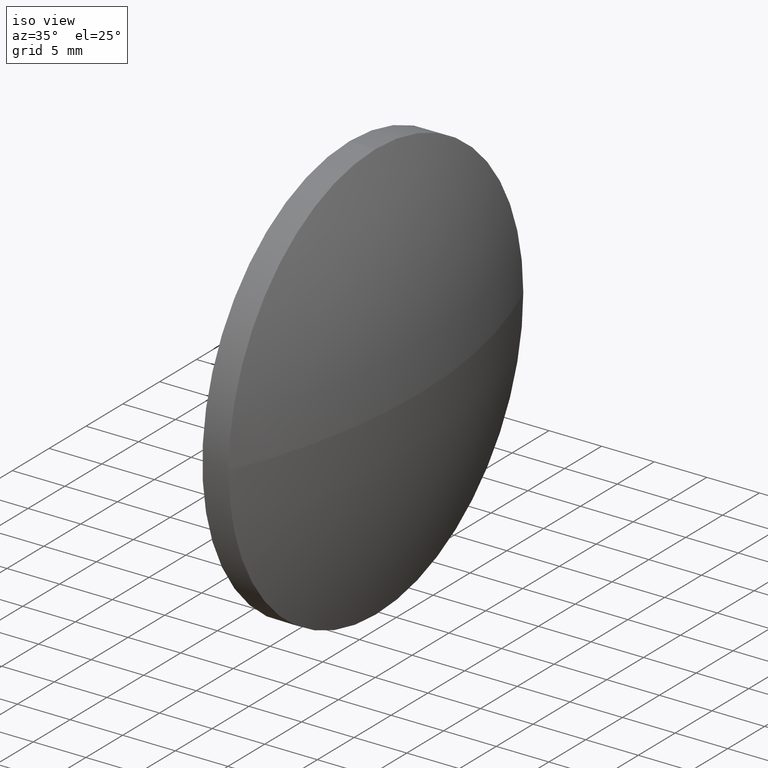
[diagram: clean part render]
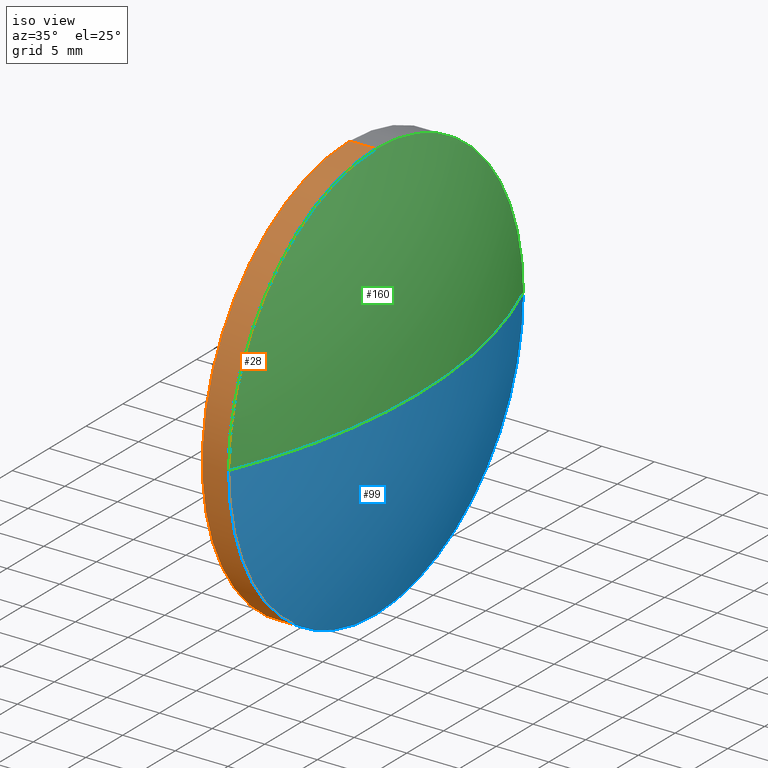
[diagram: same view with three faces highlighted in distinct colors, each labeled with its STEP entity id]
A machine part, iso view with three faces highlighted in distinct colors.
Their STEP definitions:

[orange] entity #28 — the highlighted cylindrical surface (partial cylindrical patch) has radius 20 mm, axis along (-1, -0, -0).
#1 = EDGE_CURVE ( 'NONE', #98, #41, #87, .T. ) ;
#3 = CARTESIAN_POINT ( 'NONE',  ( 492.9783732826454100, 28.03450689245858000, 0.0000000000000000000 ) ) ;
#4 = DIRECTION ( 'NONE',  ( -1.000000000000000000, -0.0000000000000000000, -0.0000000000000000000 ) ) ;
#18 = DIRECTION ( 'NONE',  ( -1.000000000000000000, -0.0000000000000000000, -0.0000000000000000000 ) ) ;
#20 = CARTESIAN_POINT ( 'NONE',  ( 499.4433268936313700, 28.03450689245858400, -20.00000000000000400 ) ) ;
#21 = VERTEX_POINT ( 'NONE', #152 ) ;
#27 = EDGE_LOOP ( 'NONE', ( #186, #71, #62, #159, #184 ) ) ;
#28 = ADVANCED_FACE ( 'NONE', ( #185 ), #58, .T. ) ;
#33 = DIRECTION ( 'NONE',  ( -1.000000000000000000, -0.0000000000000000000, -0.0000000000000000000 ) ) ;
#35 = AXIS2_PLACEMENT_3D ( 'NONE', #78, #153, #106 ) ;
#36 = DIRECTION ( 'NONE',  ( -1.000000000000000000, -0.0000000000000000000, -0.0000000000000000000 ) ) ;
#41 = VERTEX_POINT ( 'NONE', #74 ) ;
#50 = CARTESIAN_POINT ( 'NONE',  ( 499.4433268936313700, 8.034506892458615800, 0.0000000000000000000 ) ) ;
#52 = VECTOR ( 'NONE', #77, 1000.000000000000000 ) ;
#58 = CYLINDRICAL_SURFACE ( 'NONE', #100, 20.00000000000000400 ) ;
#60 = CARTESIAN_POINT ( 'NONE',  ( 496.9433268936313700, 28.03450689245858400, -20.00000000000000400 ) ) ;
#62 = ORIENTED_EDGE ( 'NONE', *, *, #175, .T. ) ;
#69 = EDGE_CURVE ( 'NONE', #135, #98, #112, .T. ) ;
#71 = ORIENTED_EDGE ( 'NONE', *, *, #103, .T. ) ;
#72 = CARTESIAN_POINT ( 'NONE',  ( 496.9433268936313700, 28.03450689245858000, 0.0000000000000000000 ) ) ;
#74 = CARTESIAN_POINT ( 'NONE',  ( 496.9433268936313700, 28.03450689245858000, 20.00000000000000400 ) ) ;
#77 = DIRECTION ( 'NONE',  ( -1.000000000000000000, -0.0000000000000000000, -0.0000000000000000000 ) ) ;
#78 = CARTESIAN_POINT ( 'NONE',  ( 499.4433268936313700, 28.03450689245858000, 0.0000000000000000000 ) ) ;
#87 = CIRCLE ( 'NONE', #162, 20.00000000000000400 ) ;
#88 = CARTESIAN_POINT ( 'NONE',  ( 492.9783732826454100, 28.03450689245858000, 20.00000000000000400 ) ) ;
#90 = CARTESIAN_POINT ( 'NONE',  ( 499.4433268936313700, 28.03450689245858000, 0.0000000000000000000 ) ) ;
#93 = CIRCLE ( 'NONE', #169, 20.00000000000000400 ) ;
#98 = VERTEX_POINT ( 'NONE', #60 ) ;
#100 = AXIS2_PLACEMENT_3D ( 'NONE', #3, #18, #102 ) ;
#102 = DIRECTION ( 'NONE',  ( 0.0000000000000000000, 0.0000000000000000000, 1.000000000000000000 ) ) ;
#103 = EDGE_CURVE ( 'NONE', #135, #150, #115, .T. ) ;
#106 = DIRECTION ( 'NONE',  ( 0.0000000000000000000, 0.0000000000000000000, 1.000000000000000000 ) ) ;
#108 = VECTOR ( 'NONE', #33, 1000.000000000000000 ) ;
#112 = LINE ( 'NONE', #122, #52 ) ;
#115 = CIRCLE ( 'NONE', #35, 20.00000000000000400 ) ;
#122 = CARTESIAN_POINT ( 'NONE',  ( 492.9783732826454100, 28.03450689245858400, -20.00000000000000400 ) ) ;
#127 = DIRECTION ( 'NONE',  ( 0.0000000000000000000, 0.0000000000000000000, 1.000000000000000000 ) ) ;
#135 = VERTEX_POINT ( 'NONE', #20 ) ;
#150 = VERTEX_POINT ( 'NONE', #50 ) ;
#151 = EDGE_CURVE ( 'NONE', #21, #41, #170, .T. ) ;
#152 = CARTESIAN_POINT ( 'NONE',  ( 499.4433268936313700, 28.03450689245858000, 20.00000000000000400 ) ) ;
#153 = DIRECTION ( 'NONE',  ( -1.000000000000000000, -0.0000000000000000000, -0.0000000000000000000 ) ) ;
#159 = ORIENTED_EDGE ( 'NONE', *, *, #151, .T. ) ;
#162 = AXIS2_PLACEMENT_3D ( 'NONE', #72, #4, #179 ) ;
#169 = AXIS2_PLACEMENT_3D ( 'NONE', #90, #36, #127 ) ;
#170 = LINE ( 'NONE', #88, #108 ) ;
#175 = EDGE_CURVE ( 'NONE', #150, #21, #93, .T. ) ;
#179 = DIRECTION ( 'NONE',  ( 0.0000000000000000000, 0.0000000000000000000, 1.000000000000000000 ) ) ;
#184 = ORIENTED_EDGE ( 'NONE', *, *, #1, .F. ) ;
#185 = FACE_OUTER_BOUND ( 'NONE', #27, .T. ) ;
#186 = ORIENTED_EDGE ( 'NONE', *, *, #69, .F. ) ;

[blue] entity #99 — the highlighted spherical surface has radius 51.6428 mm.
#9 = ORIENTED_EDGE ( 'NONE', *, *, #85, .F. ) ;
#20 = CARTESIAN_POINT ( 'NONE',  ( 499.4433268936313700, 28.03450689245858400, -20.00000000000000400 ) ) ;
#31 = CARTESIAN_POINT ( 'NONE',  ( 499.4433268936313700, 28.03450689245858000, 0.0000000000000000000 ) ) ;
#32 = CARTESIAN_POINT ( 'NONE',  ( 451.8305353303560400, 28.03450689245860500, 0.0000000000000000000 ) ) ;
#35 = AXIS2_PLACEMENT_3D ( 'NONE', #78, #153, #106 ) ;
#38 = ORIENTED_EDGE ( 'NONE', *, *, #103, .F. ) ;
#39 = DIRECTION ( 'NONE',  ( 0.0000000000000000000, -1.000000000000000000, -1.224646799147353200E-016 ) ) ;
#40 = CIRCLE ( 'NONE', #174, 20.00000000000000400 ) ;
#42 = AXIS2_PLACEMENT_3D ( 'NONE', #32, #143, #86 ) ;
#44 = VERTEX_POINT ( 'NONE', #104 ) ;
#45 = DIRECTION ( 'NONE',  ( 0.0000000000000000000, 0.0000000000000000000, -1.000000000000000000 ) ) ;
#47 = VERTEX_POINT ( 'NONE', #124 ) ;
#50 = CARTESIAN_POINT ( 'NONE',  ( 499.4433268936313700, 8.034506892458615800, 0.0000000000000000000 ) ) ;
#57 = AXIS2_PLACEMENT_3D ( 'NONE', #81, #144, #39 ) ;
#75 = SPHERICAL_SURFACE ( 'NONE', #42, 51.64279156327529600 ) ;
#78 = CARTESIAN_POINT ( 'NONE',  ( 499.4433268936313700, 28.03450689245858000, 0.0000000000000000000 ) ) ;
#81 = CARTESIAN_POINT ( 'NONE',  ( 451.8305353303560400, 28.03450689245860500, 0.0000000000000000000 ) ) ;
#85 = EDGE_CURVE ( 'NONE', #47, #135, #40, .T. ) ;
#86 = DIRECTION ( 'NONE',  ( 0.0000000000000000000, -1.000000000000000000, 0.0000000000000000000 ) ) ;
#99 = ADVANCED_FACE ( 'NONE', ( #131 ), #75, .T. ) ;
#103 = EDGE_CURVE ( 'NONE', #135, #150, #115, .T. ) ;
#104 = CARTESIAN_POINT ( 'NONE',  ( 503.4733268936313400, 28.03450689245860200, 0.0000000000000000000 ) ) ;
#105 = CIRCLE ( 'NONE', #57, 51.64279156327529600 ) ;
#106 = DIRECTION ( 'NONE',  ( 0.0000000000000000000, 0.0000000000000000000, 1.000000000000000000 ) ) ;
#111 = EDGE_CURVE ( 'NONE', #44, #47, #105, .T. ) ;
#115 = CIRCLE ( 'NONE', #35, 20.00000000000000400 ) ;
#119 = ORIENTED_EDGE ( 'NONE', *, *, #133, .T. ) ;
#124 = CARTESIAN_POINT ( 'NONE',  ( 499.4433268936313700, 48.03450689245857300, 2.449293598294701800E-015 ) ) ;
#126 = DIRECTION ( 'NONE',  ( -1.000000000000000000, -0.0000000000000000000, -0.0000000000000000000 ) ) ;
#129 = CARTESIAN_POINT ( 'NONE',  ( 451.8305353303560400, 28.03450689245860500, 0.0000000000000000000 ) ) ;
#131 = FACE_OUTER_BOUND ( 'NONE', #161, .T. ) ;
#133 = EDGE_CURVE ( 'NONE', #44, #150, #136, .T. ) ;
#135 = VERTEX_POINT ( 'NONE', #20 ) ;
#136 = CIRCLE ( 'NONE', #138, 51.64279156327528100 ) ;
#138 = AXIS2_PLACEMENT_3D ( 'NONE', #129, #45, #147 ) ;
#140 = ORIENTED_EDGE ( 'NONE', *, *, #111, .F. ) ;
#141 = DIRECTION ( 'NONE',  ( 0.0000000000000000000, 0.0000000000000000000, 1.000000000000000000 ) ) ;
#143 = DIRECTION ( 'NONE',  ( 0.0000000000000000000, 0.0000000000000000000, 1.000000000000000000 ) ) ;
#144 = DIRECTION ( 'NONE',  ( 0.0000000000000000000, -1.224646799147353200E-016, 1.000000000000000000 ) ) ;
#147 = DIRECTION ( 'NONE',  ( -1.000000000000000000, 0.0000000000000000000, 0.0000000000000000000 ) ) ;
#150 = VERTEX_POINT ( 'NONE', #50 ) ;
#153 = DIRECTION ( 'NONE',  ( -1.000000000000000000, -0.0000000000000000000, -0.0000000000000000000 ) ) ;
#161 = EDGE_LOOP ( 'NONE', ( #140, #119, #38, #9 ) ) ;
#174 = AXIS2_PLACEMENT_3D ( 'NONE', #31, #126, #141 ) ;

[green] entity #160 — the highlighted spherical surface has radius 51.6428 mm.
#5 = CIRCLE ( 'NONE', #183, 20.00000000000000400 ) ;
#7 = DIRECTION ( 'NONE',  ( 0.0000000000000000000, 0.0000000000000000000, 1.000000000000000000 ) ) ;
#13 = ORIENTED_EDGE ( 'NONE', *, *, #118, .F. ) ;
#14 = ORIENTED_EDGE ( 'NONE', *, *, #175, .F. ) ;
#21 = VERTEX_POINT ( 'NONE', #152 ) ;
#36 = DIRECTION ( 'NONE',  ( -1.000000000000000000, -0.0000000000000000000, -0.0000000000000000000 ) ) ;
#37 = CARTESIAN_POINT ( 'NONE',  ( 499.4433268936313700, 28.03450689245858000, 0.0000000000000000000 ) ) ;
#39 = DIRECTION ( 'NONE',  ( 0.0000000000000000000, -1.000000000000000000, -1.224646799147353200E-016 ) ) ;
#44 = VERTEX_POINT ( 'NONE', #104 ) ;
#45 = DIRECTION ( 'NONE',  ( 0.0000000000000000000, 0.0000000000000000000, -1.000000000000000000 ) ) ;
#47 = VERTEX_POINT ( 'NONE', #124 ) ;
#50 = CARTESIAN_POINT ( 'NONE',  ( 499.4433268936313700, 8.034506892458615800, 0.0000000000000000000 ) ) ;
#56 = ORIENTED_EDGE ( 'NONE', *, *, #111, .T. ) ;
#57 = AXIS2_PLACEMENT_3D ( 'NONE', #81, #144, #39 ) ;
#80 = CARTESIAN_POINT ( 'NONE',  ( 451.8305353303560400, 28.03450689245860500, 0.0000000000000000000 ) ) ;
#81 = CARTESIAN_POINT ( 'NONE',  ( 451.8305353303560400, 28.03450689245860500, 0.0000000000000000000 ) ) ;
#82 = DIRECTION ( 'NONE',  ( -1.000000000000000000, -0.0000000000000000000, -0.0000000000000000000 ) ) ;
#90 = CARTESIAN_POINT ( 'NONE',  ( 499.4433268936313700, 28.03450689245858000, 0.0000000000000000000 ) ) ;
#93 = CIRCLE ( 'NONE', #169, 20.00000000000000400 ) ;
#94 = ORIENTED_EDGE ( 'NONE', *, *, #133, .F. ) ;
#104 = CARTESIAN_POINT ( 'NONE',  ( 503.4733268936313400, 28.03450689245860200, 0.0000000000000000000 ) ) ;
#105 = CIRCLE ( 'NONE', #57, 51.64279156327529600 ) ;
#107 = DIRECTION ( 'NONE',  ( 0.0000000000000000000, 0.0000000000000000000, 1.000000000000000000 ) ) ;
#111 = EDGE_CURVE ( 'NONE', #44, #47, #105, .T. ) ;
#118 = EDGE_CURVE ( 'NONE', #21, #47, #5, .T. ) ;
#124 = CARTESIAN_POINT ( 'NONE',  ( 499.4433268936313700, 48.03450689245857300, 2.449293598294701800E-015 ) ) ;
#127 = DIRECTION ( 'NONE',  ( 0.0000000000000000000, 0.0000000000000000000, 1.000000000000000000 ) ) ;
#129 = CARTESIAN_POINT ( 'NONE',  ( 451.8305353303560400, 28.03450689245860500, 0.0000000000000000000 ) ) ;
#133 = EDGE_CURVE ( 'NONE', #44, #150, #136, .T. ) ;
#136 = CIRCLE ( 'NONE', #138, 51.64279156327528100 ) ;
#138 = AXIS2_PLACEMENT_3D ( 'NONE', #129, #45, #147 ) ;
#144 = DIRECTION ( 'NONE',  ( 0.0000000000000000000, -1.224646799147353200E-016, 1.000000000000000000 ) ) ;
#147 = DIRECTION ( 'NONE',  ( -1.000000000000000000, 0.0000000000000000000, 0.0000000000000000000 ) ) ;
#149 = EDGE_LOOP ( 'NONE', ( #94, #56, #13, #14 ) ) ;
#150 = VERTEX_POINT ( 'NONE', #50 ) ;
#152 = CARTESIAN_POINT ( 'NONE',  ( 499.4433268936313700, 28.03450689245858000, 20.00000000000000400 ) ) ;
#160 = ADVANCED_FACE ( 'NONE', ( #167 ), #173, .T. ) ;
#165 = DIRECTION ( 'NONE',  ( 0.0000000000000000000, -1.000000000000000000, 0.0000000000000000000 ) ) ;
#167 = FACE_OUTER_BOUND ( 'NONE', #149, .T. ) ;
#169 = AXIS2_PLACEMENT_3D ( 'NONE', #90, #36, #127 ) ;
#173 = SPHERICAL_SURFACE ( 'NONE', #178, 51.64279156327529600 ) ;
#175 = EDGE_CURVE ( 'NONE', #150, #21, #93, .T. ) ;
#178 = AXIS2_PLACEMENT_3D ( 'NONE', #80, #107, #165 ) ;
#183 = AXIS2_PLACEMENT_3D ( 'NONE', #37, #82, #7 ) ;